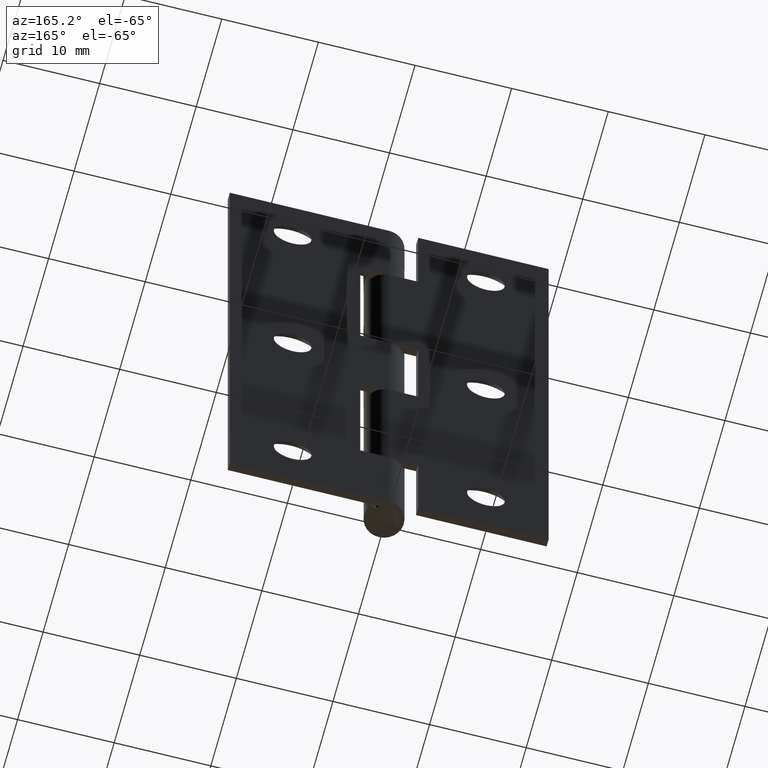
[diagram: clean part render]
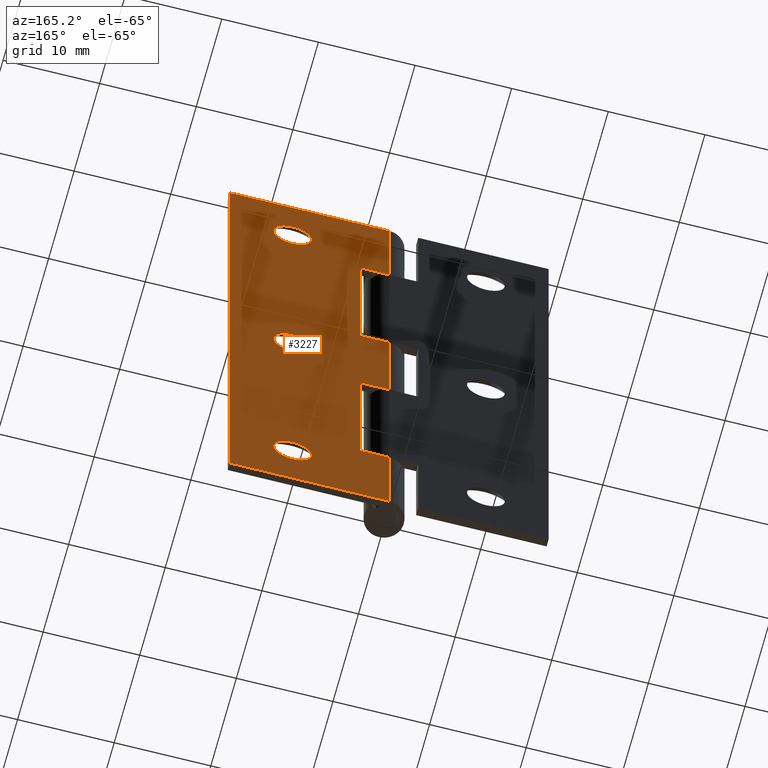
[diagram: same view with one face highlighted and labeled with its STEP entity id]
A machine part, auxiliary view. The second image highlights one B-rep face of the part: STEP entity #3227.
In plain terms, the highlighted face is a freeform B-spline surface patch.
Its self-contained STEP definition (entity closure, byte-faithful):
#1747=CARTESIAN_POINT('',(8.056011199163809,2.049997999879537,57.347012762322493));
#1748=VERTEX_POINT('',#1747);
#1754=CARTESIAN_POINT('',(10.0,2.049998000000000,59.450007999999997));
#1755=VERTEX_POINT('',#1754);
#1756=CARTESIAN_POINT('',(8.056011199163809,2.049997999879537,57.347012762322485));
#1757=CARTESIAN_POINT('',(8.049999999867350,2.049997999881724,57.423392290823507));
#1758=CARTESIAN_POINT('',(8.049999999870003,2.049997999884091,57.500007999989769));
#1759=CARTESIAN_POINT('',(8.049999999937556,2.049997999944322,59.450007999995087));
#1760=CARTESIAN_POINT('',(10.0,2.049998000000000,59.450007999999997));
#1768=(BOUNDED_CURVE()B_SPLINE_CURVE(2,(#1756,#1757,#1758,#1759,#1760),.UNSPECIFIED.,.F.,.U.)B_SPLINE_CURVE_WITH_KNOTS((3,2,3),(0.736331300544798,0.750000000000000,1.0),.UNSPECIFIED.)CURVE()GEOMETRIC_REPRESENTATION_ITEM()RATIONAL_B_SPLINE_CURVE((0.969723355988232,0.983986122478289,1.0,0.707106781186548,1.0))REPRESENTATION_ITEM(''));
#1769=EDGE_CURVE('',#1748,#1755,#1768,.T.);
#1771=CARTESIAN_POINT('',(11.943988800836189,2.049997999879536,57.653003237677517));
#1772=VERTEX_POINT('',#1771);
#1773=CARTESIAN_POINT('',(10.0,2.049998000000000,59.450007999999997));
#1774=CARTESIAN_POINT('',(11.802561457873178,2.049997999939768,59.450008000005305));
#1775=CARTESIAN_POINT('',(11.943988800836193,2.049997999879537,57.653003237677524));
#1783=(BOUNDED_CURVE()B_SPLINE_CURVE(2,(#1773,#1774,#1775),.UNSPECIFIED.,.F.,.U.)B_SPLINE_CURVE_WITH_KNOTS((3,3),(0.0,0.236331300544798),.UNSPECIFIED.)CURVE()GEOMETRIC_REPRESENTATION_ITEM()RATIONAL_B_SPLINE_CURVE((1.0,0.723120658708259,0.969723355988230))REPRESENTATION_ITEM(''));
#1784=EDGE_CURVE('',#1755,#1772,#1783,.T.);
#1830=CARTESIAN_POINT('',(10.0,2.049998000000000,55.550007999999998));
#1831=VERTEX_POINT('',#1830);
#1832=CARTESIAN_POINT('',(11.943988800836189,2.049997999879536,57.653003237677524));
#1833=CARTESIAN_POINT('',(11.950000000132647,2.049997999881724,57.576623709176509));
#1834=CARTESIAN_POINT('',(11.950000000130000,2.049997999884090,57.500008000010233));
#1835=CARTESIAN_POINT('',(11.950000000062444,2.049997999944322,55.550008000004908));
#1836=CARTESIAN_POINT('',(10.0,2.049998000000000,55.550007999999998));
#1844=(BOUNDED_CURVE()B_SPLINE_CURVE(2,(#1832,#1833,#1834,#1835,#1836),.UNSPECIFIED.,.F.,.U.)B_SPLINE_CURVE_WITH_KNOTS((3,2,3),(0.236331300544798,0.250000000000000,0.500000000000000),.UNSPECIFIED.)CURVE()GEOMETRIC_REPRESENTATION_ITEM()RATIONAL_B_SPLINE_CURVE((0.969723355988230,0.983986122478288,1.0,0.707106781186548,1.0))REPRESENTATION_ITEM(''));
#1845=EDGE_CURVE('',#1772,#1831,#1844,.T.);
#1847=CARTESIAN_POINT('',(10.0,2.049998000000000,55.550007999999998));
#1848=CARTESIAN_POINT('',(8.197438542126822,2.049997999939769,55.550007999994683));
#1849=CARTESIAN_POINT('',(8.056011199163809,2.049997999879537,57.347012762322485));
#1857=(BOUNDED_CURVE()B_SPLINE_CURVE(2,(#1847,#1848,#1849),.UNSPECIFIED.,.F.,.U.)B_SPLINE_CURVE_WITH_KNOTS((3,3),(0.500000000000000,0.736331300544797),.UNSPECIFIED.)CURVE()GEOMETRIC_REPRESENTATION_ITEM()RATIONAL_B_SPLINE_CURVE((1.0,0.723120658708259,0.969723355988230))REPRESENTATION_ITEM(''));
#1858=EDGE_CURVE('',#1831,#1748,#1857,.T.);
#1929=CARTESIAN_POINT('',(8.056011199163809,2.049997999879537,31.846996762322480));
#1930=VERTEX_POINT('',#1929);
#1936=CARTESIAN_POINT('',(10.0,2.049998000000000,33.949992000000002));
#1937=VERTEX_POINT('',#1936);
#1938=CARTESIAN_POINT('',(8.056011199163809,2.049997999879537,31.846996762322483));
#1939=CARTESIAN_POINT('',(8.049999999867351,2.049997999881724,31.923376290823501));
#1940=CARTESIAN_POINT('',(8.049999999870003,2.049997999884091,31.999991999989771));
#1941=CARTESIAN_POINT('',(8.049999999937556,2.049997999944322,33.949991999995092));
#1942=CARTESIAN_POINT('',(10.0,2.049998000000000,33.949992000000002));
#1950=(BOUNDED_CURVE()B_SPLINE_CURVE(2,(#1938,#1939,#1940,#1941,#1942),.UNSPECIFIED.,.F.,.U.)B_SPLINE_CURVE_WITH_KNOTS((3,2,3),(0.736331300544798,0.750000000000000,1.0),.UNSPECIFIED.)CURVE()GEOMETRIC_REPRESENTATION_ITEM()RATIONAL_B_SPLINE_CURVE((0.969723355988231,0.983986122478289,1.0,0.707106781186548,1.0))REPRESENTATION_ITEM(''));
#1951=EDGE_CURVE('',#1930,#1937,#1950,.T.);
#1953=CARTESIAN_POINT('',(11.943988800836189,2.049997999879536,32.152987237677507));
#1954=VERTEX_POINT('',#1953);
#1955=CARTESIAN_POINT('',(10.0,2.049998000000000,33.949992000000002));
#1956=CARTESIAN_POINT('',(11.802561457873193,2.049997999939767,33.949992000005331));
#1957=CARTESIAN_POINT('',(11.943988800836197,2.049997999879536,32.152987237677500));
#1965=(BOUNDED_CURVE()B_SPLINE_CURVE(2,(#1955,#1956,#1957),.UNSPECIFIED.,.F.,.U.)B_SPLINE_CURVE_WITH_KNOTS((3,3),(0.0,0.236331300544799),.UNSPECIFIED.)CURVE()GEOMETRIC_REPRESENTATION_ITEM()RATIONAL_B_SPLINE_CURVE((1.0,0.723120658708258,0.969723355988233))REPRESENTATION_ITEM(''));
#1966=EDGE_CURVE('',#1937,#1954,#1965,.T.);
#2012=CARTESIAN_POINT('',(10.0,2.049998000000000,30.049992000000000));
#2013=VERTEX_POINT('',#2012);
#2014=CARTESIAN_POINT('',(11.943988800836197,2.049997999879536,32.152987237677507));
#2015=CARTESIAN_POINT('',(11.950000000132649,2.049997999881724,32.076607709176507));
#2016=CARTESIAN_POINT('',(11.950000000130000,2.049997999884090,31.999992000010231));
#2017=CARTESIAN_POINT('',(11.950000000062444,2.049997999944322,30.049992000004917));
#2018=CARTESIAN_POINT('',(10.0,2.049998000000000,30.049992000000000));
#2026=(BOUNDED_CURVE()B_SPLINE_CURVE(2,(#2014,#2015,#2016,#2017,#2018),.UNSPECIFIED.,.F.,.U.)B_SPLINE_CURVE_WITH_KNOTS((3,2,3),(0.236331300544799,0.250000000000000,0.500000000000000),.UNSPECIFIED.)CURVE()GEOMETRIC_REPRESENTATION_ITEM()RATIONAL_B_SPLINE_CURVE((0.969723355988233,0.983986122478290,1.0,0.707106781186548,1.0))REPRESENTATION_ITEM(''));
#2027=EDGE_CURVE('',#1954,#2013,#2026,.T.);
#2029=CARTESIAN_POINT('',(10.0,2.049998000000000,30.049992000000000));
#2030=CARTESIAN_POINT('',(8.197438542126815,2.049997999939769,30.049991999994688));
#2031=CARTESIAN_POINT('',(8.056011199163809,2.049997999879537,31.846996762322483));
#2039=(BOUNDED_CURVE()B_SPLINE_CURVE(2,(#2029,#2030,#2031),.UNSPECIFIED.,.F.,.U.)B_SPLINE_CURVE_WITH_KNOTS((3,3),(0.500000000000000,0.736331300544798),.UNSPECIFIED.)CURVE()GEOMETRIC_REPRESENTATION_ITEM()RATIONAL_B_SPLINE_CURVE((1.0,0.723120658708259,0.969723355988231))REPRESENTATION_ITEM(''));
#2040=EDGE_CURVE('',#2013,#1930,#2039,.T.);
#2111=CARTESIAN_POINT('',(8.056011199163809,2.049997999879537,6.347004762322486));
#2112=VERTEX_POINT('',#2111);
#2118=CARTESIAN_POINT('',(10.0,2.049998000000000,8.449999999999999));
#2119=VERTEX_POINT('',#2118);
#2120=CARTESIAN_POINT('',(8.056011199163809,2.049997999879537,6.347004762322486));
#2121=CARTESIAN_POINT('',(8.049999999867351,2.049997999881724,6.423384290823500));
#2122=CARTESIAN_POINT('',(8.049999999870003,2.049997999884091,6.499999999989770));
#2123=CARTESIAN_POINT('',(8.049999999937556,2.049997999944322,8.449999999995086));
#2124=CARTESIAN_POINT('',(10.0,2.049998000000000,8.449999999999999));
#2132=(BOUNDED_CURVE()B_SPLINE_CURVE(2,(#2120,#2121,#2122,#2123,#2124),.UNSPECIFIED.,.F.,.U.)B_SPLINE_CURVE_WITH_KNOTS((3,2,3),(0.736331300544798,0.750000000000000,1.0),.UNSPECIFIED.)CURVE()GEOMETRIC_REPRESENTATION_ITEM()RATIONAL_B_SPLINE_CURVE((0.969723355988231,0.983986122478289,1.0,0.707106781186548,1.0))REPRESENTATION_ITEM(''));
#2133=EDGE_CURVE('',#2112,#2119,#2132,.T.);
#2135=CARTESIAN_POINT('',(11.943988800836189,2.049997999879537,6.652995237677514));
#2136=VERTEX_POINT('',#2135);
#2137=CARTESIAN_POINT('',(10.0,2.049998000000000,8.449999999999999));
#2138=CARTESIAN_POINT('',(11.802561457873185,2.049997999939769,8.450000000005316));
#2139=CARTESIAN_POINT('',(11.943988800836188,2.049997999879537,6.652995237677514));
#2147=(BOUNDED_CURVE()B_SPLINE_CURVE(2,(#2137,#2138,#2139),.UNSPECIFIED.,.F.,.U.)B_SPLINE_CURVE_WITH_KNOTS((3,3),(0.0,0.236331300544798),.UNSPECIFIED.)CURVE()GEOMETRIC_REPRESENTATION_ITEM()RATIONAL_B_SPLINE_CURVE((1.0,0.723120658708258,0.969723355988232))REPRESENTATION_ITEM(''));
#2148=EDGE_CURVE('',#2119,#2136,#2147,.T.);
#2194=CARTESIAN_POINT('',(10.0,2.049998000000000,4.550000000000000));
#2195=VERTEX_POINT('',#2194);
#2196=CARTESIAN_POINT('',(11.943988800836188,2.049997999879537,6.652995237677514));
#2197=CARTESIAN_POINT('',(11.950000000132652,2.049997999881724,6.576615709176502));
#2198=CARTESIAN_POINT('',(11.950000000130000,2.049997999884091,6.500000000010231));
#2199=CARTESIAN_POINT('',(11.950000000062440,2.049997999944322,4.550000000004914));
#2200=CARTESIAN_POINT('',(10.0,2.049998000000000,4.550000000000000));
#2208=(BOUNDED_CURVE()B_SPLINE_CURVE(2,(#2196,#2197,#2198,#2199,#2200),.UNSPECIFIED.,.F.,.U.)B_SPLINE_CURVE_WITH_KNOTS((3,2,3),(0.236331300544798,0.250000000000000,0.500000000000000),.UNSPECIFIED.)CURVE()GEOMETRIC_REPRESENTATION_ITEM()RATIONAL_B_SPLINE_CURVE((0.969723355988231,0.983986122478289,1.0,0.707106781186548,1.0))REPRESENTATION_ITEM(''));
#2209=EDGE_CURVE('',#2136,#2195,#2208,.T.);
#2211=CARTESIAN_POINT('',(10.0,2.049998000000000,4.550000000000000));
#2212=CARTESIAN_POINT('',(8.197438542126815,2.049997999939769,4.549999999994685));
#2213=CARTESIAN_POINT('',(8.056011199163809,2.049997999879537,6.347004762322486));
#2221=(BOUNDED_CURVE()B_SPLINE_CURVE(2,(#2211,#2212,#2213),.UNSPECIFIED.,.F.,.U.)B_SPLINE_CURVE_WITH_KNOTS((3,3),(0.500000000000000,0.736331300544798),.UNSPECIFIED.)CURVE()GEOMETRIC_REPRESENTATION_ITEM()RATIONAL_B_SPLINE_CURVE((1.0,0.723120658708259,0.969723355988231))REPRESENTATION_ITEM(''));
#2222=EDGE_CURVE('',#2195,#2112,#2221,.T.);
#2702=CARTESIAN_POINT('',(3.0,2.049998000000055,37.599997999999999));
#2703=VERTEX_POINT('',#2702);
#2709=CARTESIAN_POINT('',(0.002863563502375,2.049998000000055,37.599997999999999));
#2710=VERTEX_POINT('',#2709);
#2711=CARTESIAN_POINT('',(0.002863563502375,2.049998000000055,37.599997999999999));
#2712=CARTESIAN_POINT('',(3.0,2.049998000000055,37.599997999999999));
#2713=QUASI_UNIFORM_CURVE('',1,(#2711,#2712),.UNSPECIFIED.,.F.,.U.);
#2714=EDGE_CURVE('',#2710,#2703,#2713,.T.);
#2765=CARTESIAN_POINT('',(0.002863563502375,2.049998000000055,53.599997999999999));
#2766=VERTEX_POINT('',#2765);
#2796=CARTESIAN_POINT('',(3.0,2.049998000000055,53.599997999999999));
#2797=VERTEX_POINT('',#2796);
#2798=CARTESIAN_POINT('',(3.0,2.049998000000055,53.599997999999999));
#2799=CARTESIAN_POINT('',(0.002863563502375,2.049998000000055,53.599997999999999));
#2800=QUASI_UNIFORM_CURVE('',1,(#2798,#2799),.UNSPECIFIED.,.F.,.U.);
#2801=EDGE_CURVE('',#2797,#2766,#2800,.T.);
#2818=CARTESIAN_POINT('',(3.0,2.049998000000055,37.599997999999999));
#2819=CARTESIAN_POINT('',(3.0,2.049998000000055,53.599997999999999));
#2820=QUASI_UNIFORM_CURVE('',1,(#2818,#2819),.UNSPECIFIED.,.F.,.U.);
#2821=EDGE_CURVE('',#2703,#2797,#2820,.T.);
#2833=CARTESIAN_POINT('',(3.0,2.049998000000055,10.399994000000000));
#2834=VERTEX_POINT('',#2833);
#2840=CARTESIAN_POINT('',(0.002863563502375,2.049998000000055,10.399994000000000));
#2841=VERTEX_POINT('',#2840);
#2842=CARTESIAN_POINT('',(0.002863563502375,2.049998000000055,10.399994000000000));
#2843=CARTESIAN_POINT('',(3.0,2.049998000000055,10.399994000000000));
#2844=QUASI_UNIFORM_CURVE('',1,(#2842,#2843),.UNSPECIFIED.,.F.,.U.);
#2845=EDGE_CURVE('',#2841,#2834,#2844,.T.);
#2897=CARTESIAN_POINT('',(0.002863563502375,2.049998000000055,26.399994000000000));
#2898=VERTEX_POINT('',#2897);
#2930=CARTESIAN_POINT('',(3.0,2.049998000000055,26.399994000000000));
#2931=VERTEX_POINT('',#2930);
#2932=CARTESIAN_POINT('',(3.0,2.049998000000055,26.399994000000000));
#2933=CARTESIAN_POINT('',(0.002863563502375,2.049998000000055,26.399994000000000));
#2934=QUASI_UNIFORM_CURVE('',1,(#2932,#2933),.UNSPECIFIED.,.F.,.U.);
#2935=EDGE_CURVE('',#2931,#2898,#2934,.T.);
#2952=CARTESIAN_POINT('',(3.0,2.049998000000055,10.399994000000000));
#2953=CARTESIAN_POINT('',(3.0,2.049998000000055,26.399994000000000));
#2954=QUASI_UNIFORM_CURVE('',1,(#2952,#2953),.UNSPECIFIED.,.F.,.U.);
#2955=EDGE_CURVE('',#2834,#2931,#2954,.T.);
#2967=CARTESIAN_POINT('',(0.002863563502375,2.049998000000000,0.0));
#2968=VERTEX_POINT('',#2967);
#2969=CARTESIAN_POINT('',(16.500000000000000,2.049998000000000,0.0));
#2970=VERTEX_POINT('',#2969);
#2971=CARTESIAN_POINT('',(0.002863563502375,2.049998000000000,0.0));
#2972=CARTESIAN_POINT('',(16.500000000000000,2.049998000000000,0.0));
#2973=QUASI_UNIFORM_CURVE('',1,(#2971,#2972),.UNSPECIFIED.,.F.,.U.);
#2974=EDGE_CURVE('',#2968,#2970,#2973,.T.);
#3022=CARTESIAN_POINT('',(0.002863563502375,2.049998000000000,64.000007999999895));
#3023=VERTEX_POINT('',#3022);
#3024=CARTESIAN_POINT('',(16.500000000000000,2.049998000000000,64.000007999999895));
#3025=VERTEX_POINT('',#3024);
#3026=CARTESIAN_POINT('',(0.002863563502375,2.049998000000000,64.000007999999895));
#3027=CARTESIAN_POINT('',(16.500000000000000,2.049998000000000,64.000007999999895));
#3028=QUASI_UNIFORM_CURVE('',1,(#3026,#3027),.UNSPECIFIED.,.F.,.U.);
#3029=EDGE_CURVE('',#3023,#3025,#3028,.T.);
#3079=CARTESIAN_POINT('',(16.500000000000000,2.049998000000000,64.000007999999895));
#3080=CARTESIAN_POINT('',(16.500000000000000,2.049998000000000,0.0));
#3081=QUASI_UNIFORM_CURVE('',1,(#3079,#3080),.UNSPECIFIED.,.F.,.U.);
#3082=EDGE_CURVE('',#3025,#2970,#3081,.T.);
#3113=CARTESIAN_POINT('',(0.002863563502375,2.049998000000055,10.399994000000000));
#3114=CARTESIAN_POINT('',(0.002863563502375,2.049998000000000,0.0));
#3115=QUASI_UNIFORM_CURVE('',1,(#3113,#3114),.UNSPECIFIED.,.F.,.U.);
#3116=EDGE_CURVE('',#2841,#2968,#3115,.T.);
#3147=CARTESIAN_POINT('',(0.002863563502375,2.049998000000055,37.599997999999999));
#3148=CARTESIAN_POINT('',(0.002863563502375,2.049998000000055,26.399994000000000));
#3149=QUASI_UNIFORM_CURVE('',1,(#3147,#3148),.UNSPECIFIED.,.F.,.U.);
#3150=EDGE_CURVE('',#2710,#2898,#3149,.T.);
#3182=CARTESIAN_POINT('',(0.002863563502375,2.049998000000000,64.000007999999895));
#3183=CARTESIAN_POINT('',(0.002863563502375,2.049998000000055,53.599997999999999));
#3184=QUASI_UNIFORM_CURVE('',1,(#3182,#3183),.UNSPECIFIED.,.F.,.U.);
#3185=EDGE_CURVE('',#3023,#2766,#3184,.T.);
#3190=CARTESIAN_POINT('',(-0.821168369526032,2.049998000000000,-3.196800275555559));
#3191=CARTESIAN_POINT('',(-0.821168369526032,2.049998000000000,67.196809992169435));
#3192=CARTESIAN_POINT('',(17.324032375516090,2.049998000000000,-3.196800275555559));
#3193=CARTESIAN_POINT('',(17.324032375516090,2.049998000000000,67.196809992169435));
#3194=B_SPLINE_SURFACE_WITH_KNOTS('',1,1,((#3190,#3192),(#3191,#3193)),.UNSPECIFIED.,.F.,.F.,.U.,(2,2),(2,2),(0.0,70.393610267724995),(0.0,18.145200745042121),.UNSPECIFIED.);
#3195=ORIENTED_EDGE('',*,*,#2821,.T.);
#3196=ORIENTED_EDGE('',*,*,#2801,.T.);
#3197=ORIENTED_EDGE('',*,*,#3185,.F.);
#3198=ORIENTED_EDGE('',*,*,#3029,.T.);
#3199=ORIENTED_EDGE('',*,*,#3082,.T.);
#3200=ORIENTED_EDGE('',*,*,#2974,.F.);
#3201=ORIENTED_EDGE('',*,*,#3116,.F.);
#3202=ORIENTED_EDGE('',*,*,#2845,.T.);
#3203=ORIENTED_EDGE('',*,*,#2955,.T.);
#3204=ORIENTED_EDGE('',*,*,#2935,.T.);
#3205=ORIENTED_EDGE('',*,*,#3150,.F.);
#3206=ORIENTED_EDGE('',*,*,#2714,.T.);
#3207=EDGE_LOOP('',(#3195,#3196,#3197,#3198,#3199,#3200,#3201,#3202,#3203,#3204,#3205,#3206));
#3208=FACE_OUTER_BOUND('',#3207,.T.);
#3209=ORIENTED_EDGE('',*,*,#2222,.F.);
#3210=ORIENTED_EDGE('',*,*,#2209,.F.);
#3211=ORIENTED_EDGE('',*,*,#2148,.F.);
#3212=ORIENTED_EDGE('',*,*,#2133,.F.);
#3213=EDGE_LOOP('',(#3209,#3210,#3211,#3212));
#3214=FACE_BOUND('',#3213,.T.);
#3215=ORIENTED_EDGE('',*,*,#2040,.F.);
#3216=ORIENTED_EDGE('',*,*,#2027,.F.);
#3217=ORIENTED_EDGE('',*,*,#1966,.F.);
#3218=ORIENTED_EDGE('',*,*,#1951,.F.);
#3219=EDGE_LOOP('',(#3215,#3216,#3217,#3218));
#3220=FACE_BOUND('',#3219,.T.);
#3221=ORIENTED_EDGE('',*,*,#1858,.F.);
#3222=ORIENTED_EDGE('',*,*,#1845,.F.);
#3223=ORIENTED_EDGE('',*,*,#1784,.F.);
#3224=ORIENTED_EDGE('',*,*,#1769,.F.);
#3225=EDGE_LOOP('',(#3221,#3222,#3223,#3224));
#3226=FACE_BOUND('',#3225,.T.);
#3227=ADVANCED_FACE('',(#3208,#3214,#3220,#3226),#3194,.T.);